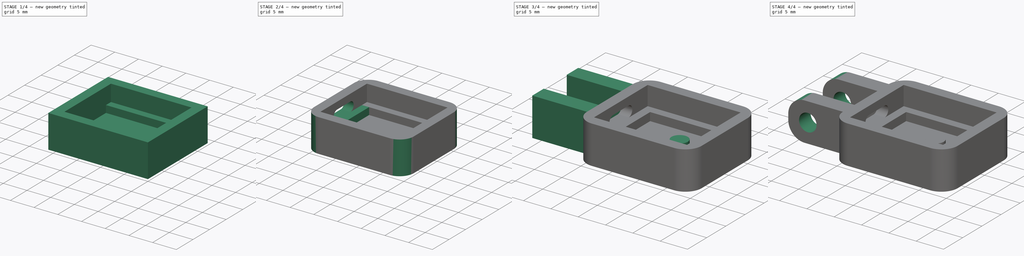
[diagram: build sequence overview — one tinted view per stage of 4, left to right]
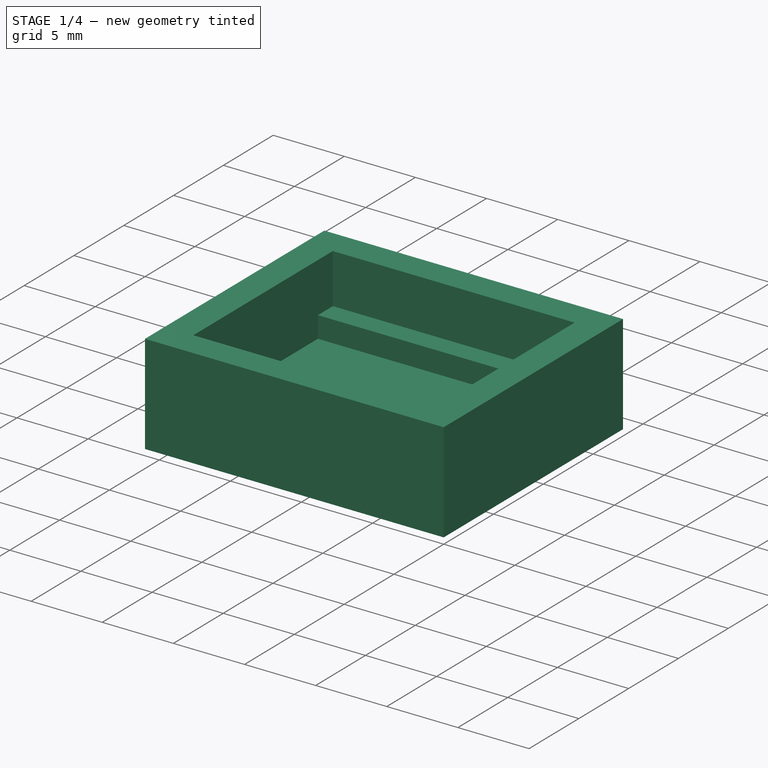
[diagram: stage 1 of 4 — iso view after this stage's code; geometry added in this stage tinted green]
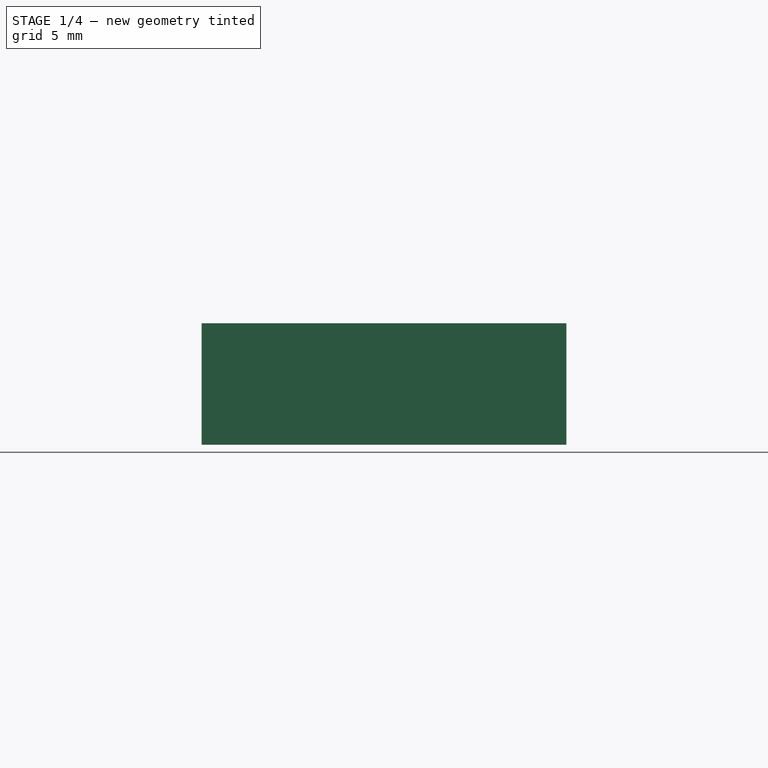
[diagram: stage 1 of 4 — front view after this stage's code; geometry added in this stage tinted green]
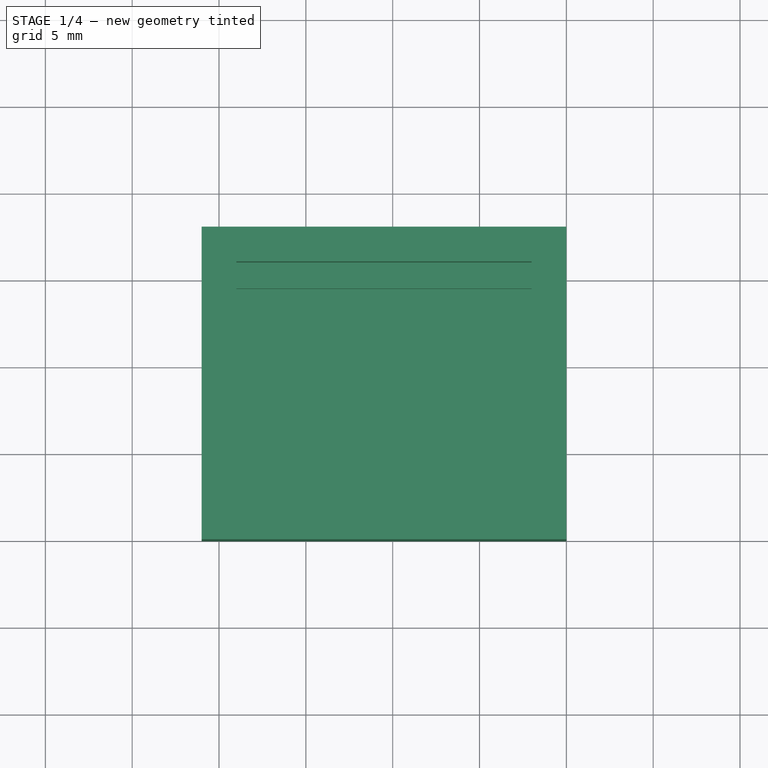
[diagram: stage 1 of 4 — top view after this stage's code; geometry added in this stage tinted green]
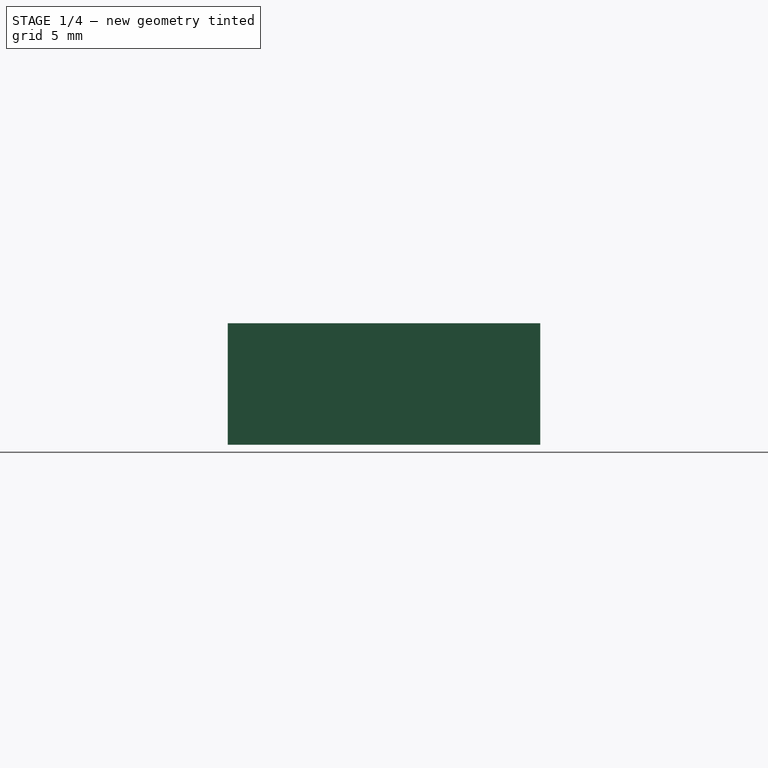
[diagram: stage 1 of 4 — right view after this stage's code; geometry added in this stage tinted green]
FCSTD DOCUMENT  (FreeCAD 0.19R24291 (Git))
Label: SensorBox
License: All rights reserved
LicenseURL: http://en.wikipedia.org/wiki/All_rights_reserved
objects: Sketcher::SketchObject×10, App::MeasureDistance×9, PartDesign::Pad×5, PartDesign::Pocket×4, PartDesign::Fillet×3, PartDesign::Body×1
note: 35 computed .brp shape members not serialized (recipe doc carries the construction recipe); baked Part::Feature solids carry a one-line shape summary decoded from their .brp

FEATURE [Sketcher::SketchObject] Sketch
  FullyConstrained = true
  MapMode = 5
  Support = -> [XY_Plane]
  sketch-geometry (4):
    g0: LineSegment StartX=0 StartY=0 StartZ=0 EndX=-21 EndY=0 EndZ=0
    g1: LineSegment StartX=-21 StartY=0 StartZ=0 EndX=-21 EndY=18 EndZ=0
    g2: LineSegment StartX=-21 StartY=18 StartZ=0 EndX=0 EndY=18 EndZ=0
    g3: LineSegment StartX=0 StartY=18 StartZ=0 EndX=0 EndY=0 EndZ=0
  constraints (11):
    c: Coincident(g0,g1)
    c: Coincident(g1,g2)
    c: Coincident(g2,g3)
    c: Coincident(g3,g0)
    c: Horizontal(g0)
    c: Horizontal(g2)
    c: Vertical(g1)
    c: Vertical(g3)
    c: Coincident(g0,g-1)
    c: DistanceX(g2,g2) = 21
    c: DistanceY(g1,g1) = 18
FEATURE [PartDesign::Pad] Pad
  Direction = (1,1,1)
  Length = 7
  Length2 = 100
  Profile = -> Sketch
  Type = 0
FEATURE [Sketcher::SketchObject] Sketch001
  ExternalGeometry = -> [Pad]
  FullyConstrained = true
  MapMode = 5
  Placement = pos=(0,0,7) rot=(0,0,1;0rad)
  Support = -> [Pad]
  sketch-geometry (4):
    g0: LineSegment StartX=-19 StartY=16 StartZ=0 EndX=-2 EndY=16 EndZ=0
    g1: LineSegment StartX=-2 StartY=16 StartZ=0 EndX=-2 EndY=2 EndZ=0
    g2: LineSegment StartX=-2 StartY=2 StartZ=0 EndX=-19 EndY=2 EndZ=0
    g3: LineSegment StartX=-19 StartY=2 StartZ=0 EndX=-19 EndY=16 EndZ=0
  constraints (12):
    c: Coincident(g0,g1)
    c: Coincident(g1,g2)
    c: Coincident(g2,g3)
    c: Coincident(g3,g0)
    c: Horizontal(g0)
    c: Horizontal(g2)
    c: Vertical(g1)
    c: Vertical(g3)
    c: Distance(g0,g-3) = 2
    c: Distance(g2,g-5) = 2
    c: Distance(g0,g-4) = 2
    c: DistanceX(g-2,g0) = -2
FEATURE [PartDesign::Pocket] Pocket
  BaseFeature = -> Pad
  Length = 5
  Length2 = 100
  Profile = -> Sketch001
  Type = 0
FEATURE [Sketcher::SketchObject] Sketch002
  FullyConstrained = true
  MapMode = 5
  Placement = pos=(0,0,2) rot=(0,0,1;0rad)
  Support = -> [Pocket]
FEATURE [App::MeasureDistance] Distance  label="Distance: 17,00 mm"
  Distance = 17
  P1 = (-19,16,7)
  P2 = (-2,16,7)
FEATURE [App::MeasureDistance] Distance001  label="Distance: 14,00 mm"
  Distance = 14
  P1 = (-19,2,7)
  P2 = (-19,16,7)
FEATURE [Sketcher::SketchObject] Sketch003
  ExternalGeometry = -> [Pocket]
  FullyConstrained = true
  MapMode = 5
  Placement = pos=(0,0,2) rot=(0,0,1;0rad)
  Support = -> [Pocket]
  sketch-geometry (8):
    g0: LineSegment StartX=-19 StartY=16 StartZ=0 EndX=-2 EndY=16 EndZ=0
    g1: LineSegment StartX=-2 StartY=16 StartZ=0 EndX=-2 EndY=14.5 EndZ=0
    g2: LineSegment StartX=-2 StartY=14.5 StartZ=0 EndX=-19 EndY=14.5 EndZ=0
    g3: LineSegment StartX=-19 StartY=14.5 StartZ=0 EndX=-19 EndY=16 EndZ=0
    g4: LineSegment StartX=-19 StartY=2 StartZ=0 EndX=-2 EndY=2 EndZ=0
    g5: LineSegment StartX=-2 StartY=2 StartZ=0 EndX=-2 EndY=3.5 EndZ=0
    g6: LineSegment StartX=-2 StartY=3.5 StartZ=0 EndX=-19 EndY=3.5 EndZ=0
    g7: LineSegment StartX=-19 StartY=3.5 StartZ=0 EndX=-19 EndY=2 EndZ=0
  constraints (22):
    c: Coincident(g0,g1)
    c: Coincident(g1,g2)
    c: Coincident(g2,g3)
    c: Coincident(g3,g0)
    c: Horizontal(g0)
    c: Horizontal(g2)
    c: Vertical(g1)
    c: Vertical(g3)
    c: Coincident(g0,g-5)
    c: PointOnObject(g1,g-4)
    c: Coincident(g4,g5)
    c: Coincident(g5,g6)
    c: Coincident(g6,g7)
    c: Coincident(g7,g4)
    c: Horizontal(g4)
    c: Horizontal(g6)
    c: Vertical(g5)
    c: Vertical(g7)
    c: Coincident(g4,g-5)
    c: PointOnObject(g5,g-4)
    c: DistanceY(g7,g7) = 1.5
    c: DistanceY(g3,g3) = 1.5
FEATURE [PartDesign::Pad] Pad001
  BaseFeature = -> Pocket
  Direction = (1,1,1)
  Length = 1.5
  Length2 = 100
  Profile = -> Sketch003
  Type = 0
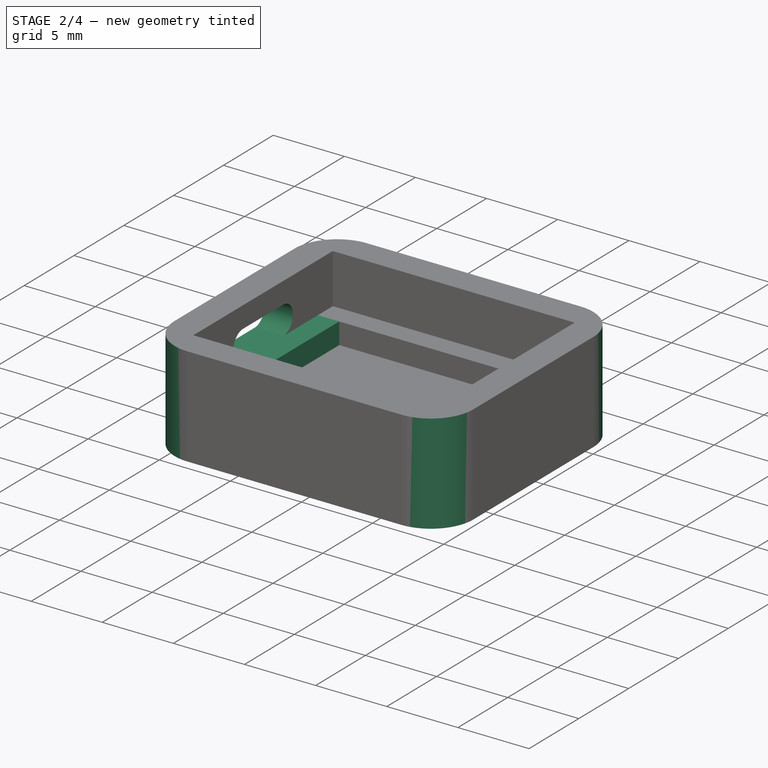
[diagram: stage 2 of 4 — iso view after this stage's code; geometry added in this stage tinted green]
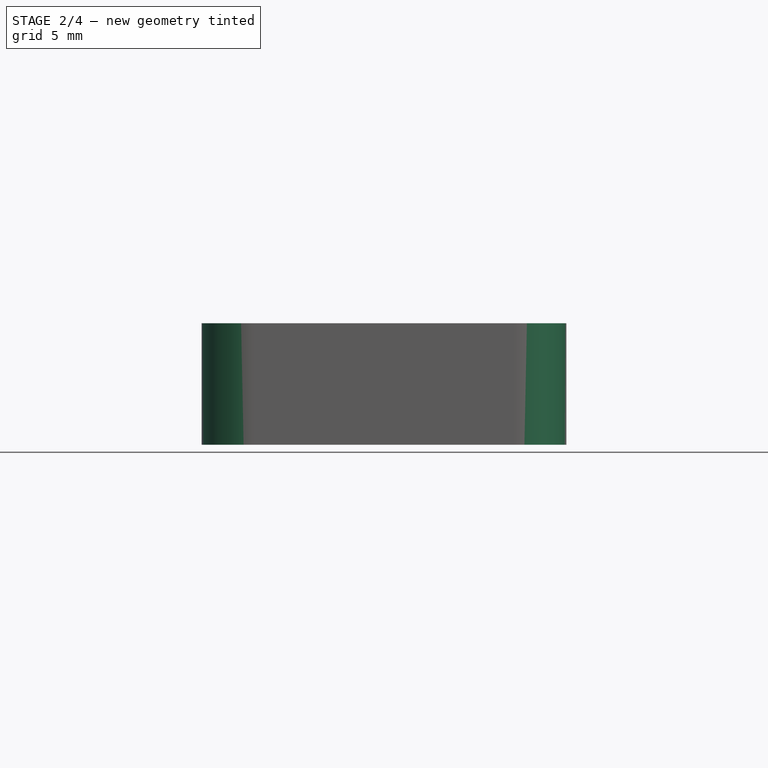
[diagram: stage 2 of 4 — front view after this stage's code; geometry added in this stage tinted green]
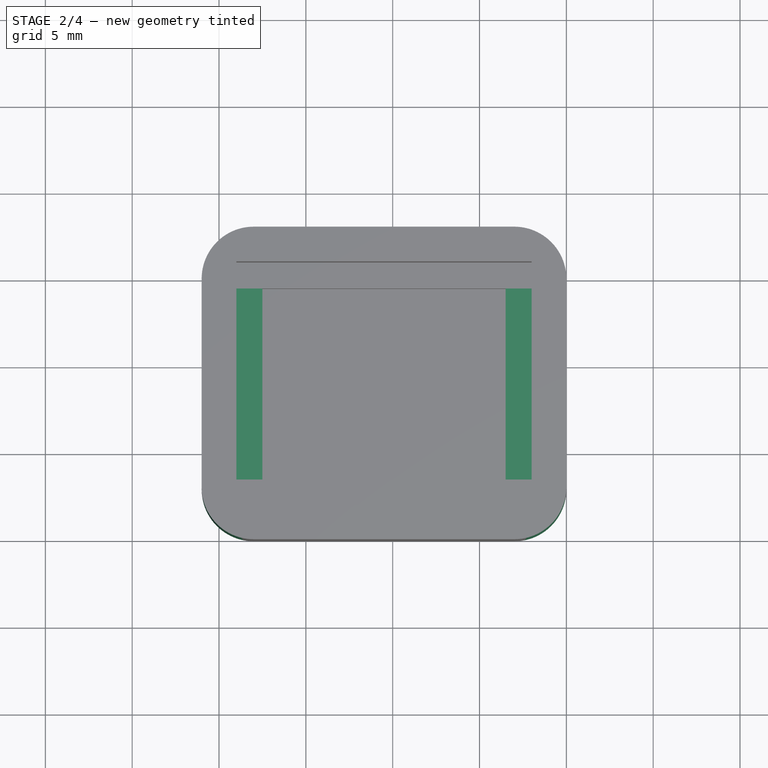
[diagram: stage 2 of 4 — top view after this stage's code; geometry added in this stage tinted green]
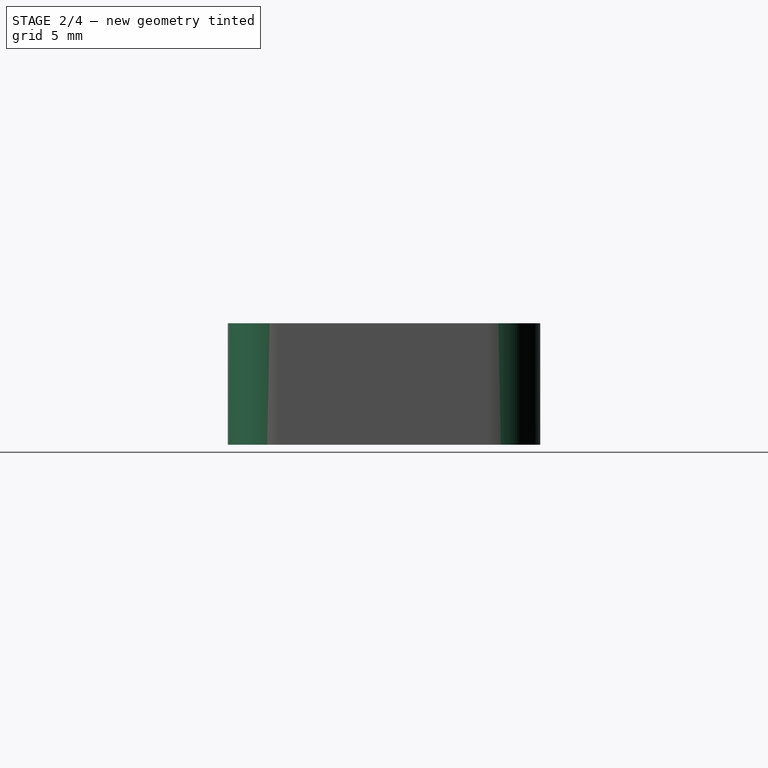
[diagram: stage 2 of 4 — right view after this stage's code; geometry added in this stage tinted green]
FEATURE [App::MeasureDistance] Distance002  label="Distance: 11,00 mm"
  Distance = 11
  P1 = (-19,14.5,17)
  P2 = (-19,3.5,17)
FEATURE [Sketcher::SketchObject] Sketch004
  ExternalGeometry = -> [Pad001]
  FullyConstrained = true
  MapMode = 5
  Placement = pos=(0,0,2) rot=(0,0,1;0rad)
  Support = -> [Pad001]
  sketch-geometry (8):
    g0: LineSegment StartX=-19 StartY=14.5 StartZ=0 EndX=-17.5 EndY=14.5 EndZ=0
    g1: LineSegment StartX=-17.5 StartY=14.5 StartZ=0 EndX=-17.5 EndY=3.5 EndZ=0
    g2: LineSegment StartX=-17.5 StartY=3.5 StartZ=0 EndX=-19 EndY=3.5 EndZ=0
    g3: LineSegment StartX=-19 StartY=3.5 StartZ=0 EndX=-19 EndY=14.5 EndZ=0
    g4: LineSegment StartX=-2 StartY=3.5 StartZ=0 EndX=-3.5 EndY=3.5 EndZ=0
    g5: LineSegment StartX=-3.5 StartY=3.5 StartZ=0 EndX=-3.5 EndY=14.5 EndZ=0
    g6: LineSegment StartX=-3.5 StartY=14.5 StartZ=0 EndX=-2 EndY=14.5 EndZ=0
    g7: LineSegment StartX=-2 StartY=14.5 StartZ=0 EndX=-2 EndY=3.5 EndZ=0
  constraints (22):
    c: Coincident(g0,g1)
    c: Coincident(g1,g2)
    c: Coincident(g2,g3)
    c: Coincident(g3,g0)
    c: Horizontal(g0)
    c: Horizontal(g2)
    c: Vertical(g1)
    c: Vertical(g3)
    c: Coincident(g0,g-6)
    c: PointOnObject(g1,g-3)
    c: Coincident(g4,g5)
    c: Coincident(g5,g6)
    c: Coincident(g6,g7)
    c: Coincident(g7,g4)
    c: Horizontal(g4)
    c: Horizontal(g6)
    c: Vertical(g5)
    c: Vertical(g7)
    c: Coincident(g4,g-3)
    c: PointOnObject(g5,g-6)
    c: DistanceX(g6,g6) = 1.5
    c: DistanceX(g0,g0) = 1.5
FEATURE [PartDesign::Pad] Pad002
  BaseFeature = -> Pad001
  Direction = (1,1,1)
  Length = 1.5
  Length2 = 100
  Profile = -> Sketch004
  Type = 0
FEATURE [Sketcher::SketchObject] Sketch005
  ExternalGeometry = -> [Pad002]
  FullyConstrained = true
  MapMode = 5
  Placement = pos=(-19,0,0) rot=(0.57735,0.57735,0.57735;2.0944rad)
  Support = -> [Pad002]
  sketch-geometry (8):
    g0: ArcOfCircle CenterX=7 CenterY=4.5 CenterZ=0 NormalX=0 NormalY=0 NormalZ=1 AngleXU=0 Radius=1 StartAngle=1.5708 EndAngle=4.71239
    g1: ArcOfCircle CenterX=11 CenterY=4.5 CenterZ=0 NormalX=0 NormalY=0 NormalZ=1 AngleXU=0 Radius=1 StartAngle=4.71239 EndAngle=7.85398
    g2: LineSegment StartX=7 StartY=3.5 StartZ=0 EndX=11 EndY=3.5 EndZ=0
    g3: LineSegment StartX=7 StartY=5.5 StartZ=0 EndX=11 EndY=5.5 EndZ=0
    g4: LineSegment StartX=2 StartY=7 StartZ=0 EndX=7 EndY=4.5 EndZ=0
    g5: LineSegment StartX=7 StartY=4.5 StartZ=0 EndX=3.5 EndY=3.5 EndZ=0
    g6: LineSegment StartX=14.5 StartY=3.5 StartZ=0 EndX=11 EndY=4.5 EndZ=0
    g7: LineSegment StartX=11 StartY=4.5 StartZ=0 EndX=16 EndY=7 EndZ=0
  constraints (18):
    c: Tangent(g0,g3) = 1.5708
    c: Tangent(g0,g2) = -1.5708
    c: Tangent(g2,g1) = -1.5708
    c: Tangent(g3,g1) = 1.5708
    c: Horizontal(g2)
    c: Equal(g0,g1)
    c: Coincident(g4,g-4)
    c: Coincident(g4,g0)
    c: Coincident(g5,g0)
    c: Coincident(g5,g-3)
    c: Coincident(g6,g-3)
    c: Coincident(g6,g1)
    c: Coincident(g7,g1)
    c: Coincident(g7,g-4)
    c: Equal(g7,g4)
    c: PointOnObject(g1,g-3)
    c: Distance(g1,g1) = 2
    c: Distance(g1,g0) = 4
FEATURE [PartDesign::Pocket] Pocket001
  BaseFeature = -> Pad002
  Length = 5
  Length2 = 100
  Profile = -> Sketch005
  Type = 0
FEATURE [Sketcher::SketchObject] Sketch006
  ExternalGeometry = -> [Pocket001]
  FullyConstrained = true
  MapMode = 5
  Placement = pos=(0,0,2) rot=(0,0,1;0rad)
  Support = -> [Pocket001]
  sketch-geometry (4):
    g0: LineSegment StartX=-7.5 StartY=13 StartZ=0 EndX=-4 EndY=13 EndZ=0
    g1: LineSegment StartX=-4 StartY=13 StartZ=0 EndX=-4 EndY=10.5 EndZ=0
    g2: LineSegment StartX=-4 StartY=10.5 StartZ=0 EndX=-7.5 EndY=10.5 EndZ=0
    g3: LineSegment StartX=-7.5 StartY=10.5 StartZ=0 EndX=-7.5 EndY=13 EndZ=0
  constraints (12):
    c: Coincident(g0,g1)
    c: Coincident(g1,g2)
    c: Coincident(g2,g3)
    c: Coincident(g3,g0)
    c: Horizontal(g0)
    c: Horizontal(g2)
    c: Vertical(g1)
    c: Vertical(g3)
    c: Distance(g1,g-4) = 0.5
    c: Distance(g0,g-3) = 1.5
    c: DistanceY(g3,g3) = 2.5
    c: DistanceX(g0,g0) = 3.5
FEATURE [App::MeasureDistance] Distance003  label="Distance: 21,00 mm"
  Distance = 21.0001
  P1 = (-21,17.9518,7)
  P2 = (0,18,7)
FEATURE [App::MeasureDistance] Distance004  label="Distance: 17,97 mm"
  Distance = 17.9669
  P1 = (0,17.9669,7)
  P2 = (0,0,7)
FEATURE [PartDesign::Fillet] Fillet
  Base = -> Pocket001 [Edge1,Edge2,Edge10,Edge5]
  BaseFeature = -> Pocket001
  Radius = 3
  SupportTransform = false
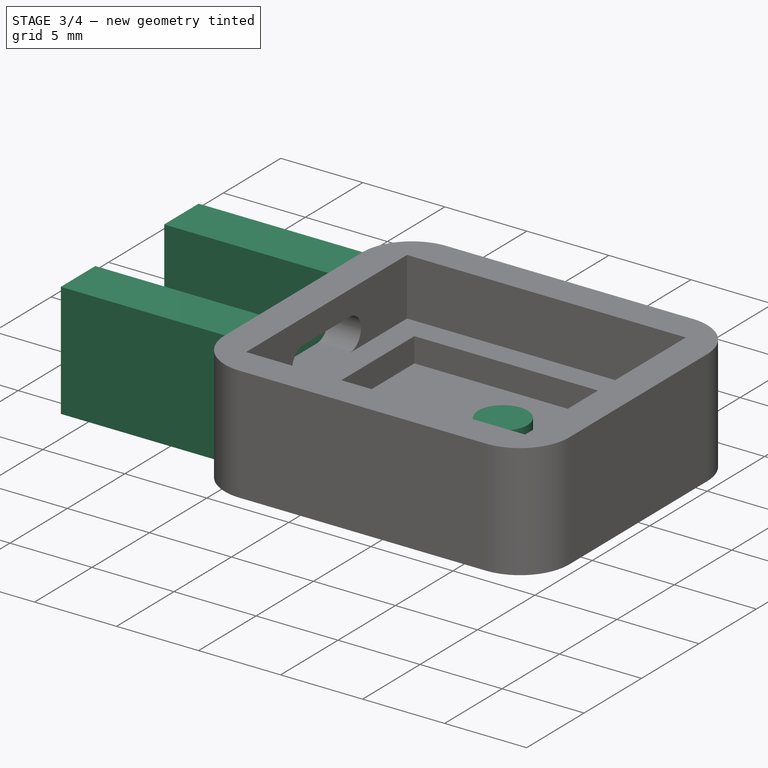
[diagram: stage 3 of 4 — iso view after this stage's code; geometry added in this stage tinted green]
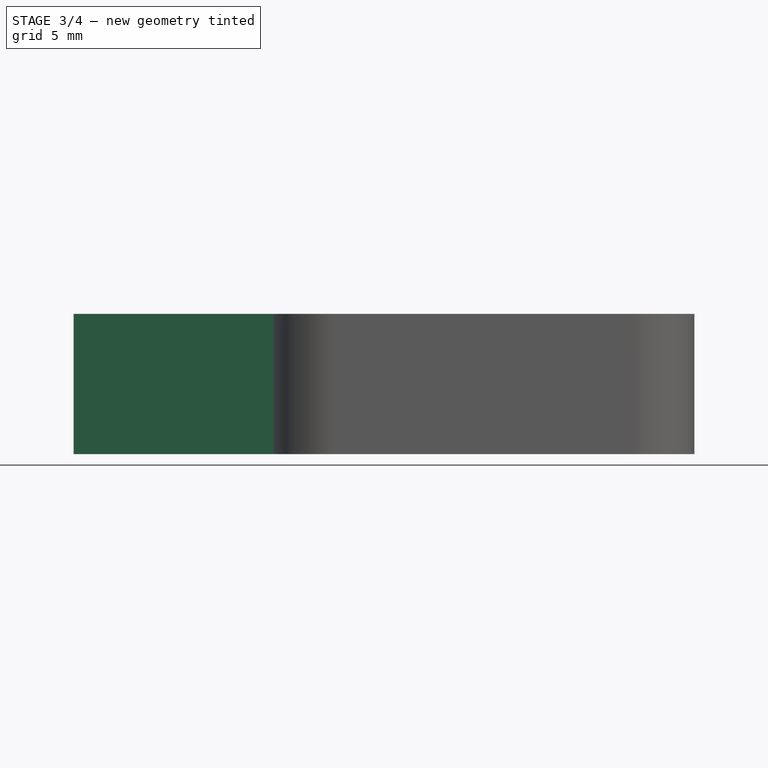
[diagram: stage 3 of 4 — front view after this stage's code; geometry added in this stage tinted green]
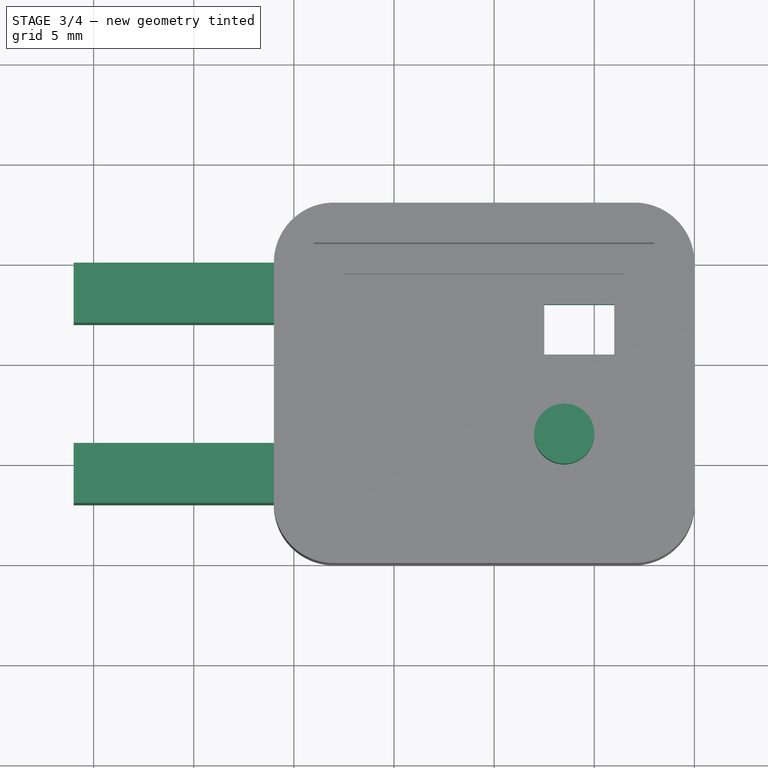
[diagram: stage 3 of 4 — top view after this stage's code; geometry added in this stage tinted green]
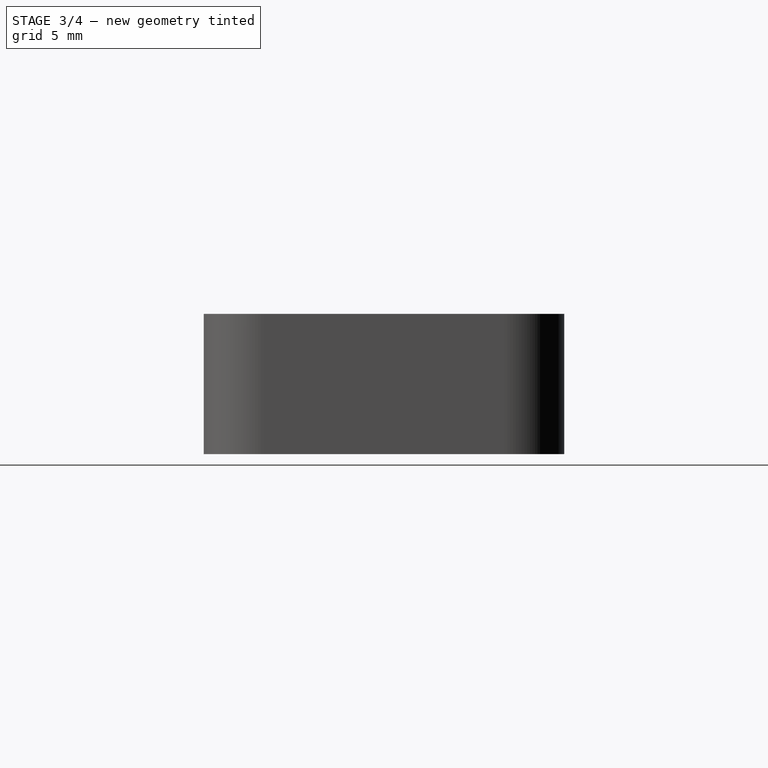
[diagram: stage 3 of 4 — right view after this stage's code; geometry added in this stage tinted green]
FEATURE [PartDesign::Pocket] Pocket002
  BaseFeature = -> Fillet
  Length = 5
  Length2 = 100
  Profile = -> Sketch006
  Type = 0
FEATURE [Sketcher::SketchObject] Sketch007
  ExternalGeometry = -> [Pocket002]
  FullyConstrained = true
  MapMode = 5
  Placement = pos=(0,0,2) rot=(0,0,1;0rad)
  Support = -> [Pocket002]
  sketch-geometry (1):
    g0: Circle CenterX=-6.5 CenterY=6.5 CenterZ=0 NormalX=0 NormalY=0 NormalZ=1 AngleXU=0 Radius=1.5
  constraints (3):
    c: Distance(g0,g-3) = 3
    c: Distance(g0,g-4) = 3
    c: Radius(g0) = 1.5
FEATURE [PartDesign::Pad] Pad003
  BaseFeature = -> Pocket002
  Direction = (1,1,1)
  Length = 3
  Length2 = 100
  Profile = -> Sketch007
  Type = 0
FEATURE [Sketcher::SketchObject] Sketch008
  ExternalGeometry = -> [Pad003]
  FullyConstrained = true
  MapMode = 5
  Placement = pos=(-21,0,0) rot=(0.57735,-0.57735,-0.57735;2.0944rad)
  Support = -> [Pad003]
  sketch-geometry (8):
    g0: LineSegment StartX=-15 StartY=7 StartZ=0 EndX=-12 EndY=7 EndZ=0
    g1: LineSegment StartX=-12 StartY=7 StartZ=0 EndX=-12 EndY=0 EndZ=0
    g2: LineSegment StartX=-12 StartY=0 StartZ=0 EndX=-15 EndY=0 EndZ=0
    g3: LineSegment StartX=-15 StartY=0 StartZ=0 EndX=-15 EndY=7 EndZ=0
    g4: LineSegment StartX=-6 StartY=0 StartZ=0 EndX=-3 EndY=0 EndZ=0
    g5: LineSegment StartX=-3 StartY=0 StartZ=0 EndX=-3 EndY=7 EndZ=0
    g6: LineSegment StartX=-3 StartY=7 StartZ=0 EndX=-6 EndY=7 EndZ=0
    g7: LineSegment StartX=-6 StartY=7 StartZ=0 EndX=-6 EndY=0 EndZ=0
  constraints (24):
    c: Coincident(g0,g1)
    c: Coincident(g1,g2)
    c: Coincident(g2,g3)
    c: Coincident(g3,g0)
    c: Horizontal(g0)
    c: Horizontal(g2)
    c: Vertical(g1)
    c: Vertical(g3)
    c: PointOnObject(g0,g-3)
    c: PointOnObject(g1,g-4)
    c: Coincident(g4,g5)
    c: Coincident(g5,g6)
    c: Coincident(g6,g7)
    c: Coincident(g7,g4)
    c: Horizontal(g4)
    c: Horizontal(g6)
    c: Vertical(g5)
    c: Vertical(g7)
    c: PointOnObject(g4,g-4)
    c: PointOnObject(g5,g-3)
    c: Tangent(g-5,g7)
    c: Tangent(g1,g-6)
    c: DistanceX(g0,g0) = 3
    c: DistanceX(g6,g6) = 3
FEATURE [PartDesign::Pad] Pad004
  BaseFeature = -> Pad003
  Direction = (1,1,1)
  Length = 10
  Length2 = 100
  Profile = -> Sketch008
  Type = 0
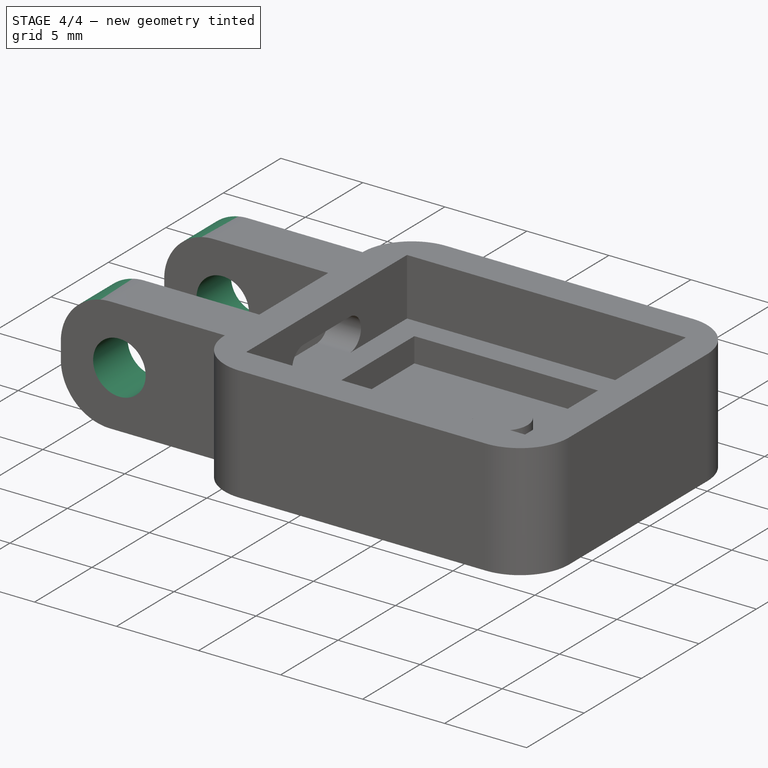
[diagram: stage 4 of 4 — iso view after this stage's code; geometry added in this stage tinted green]
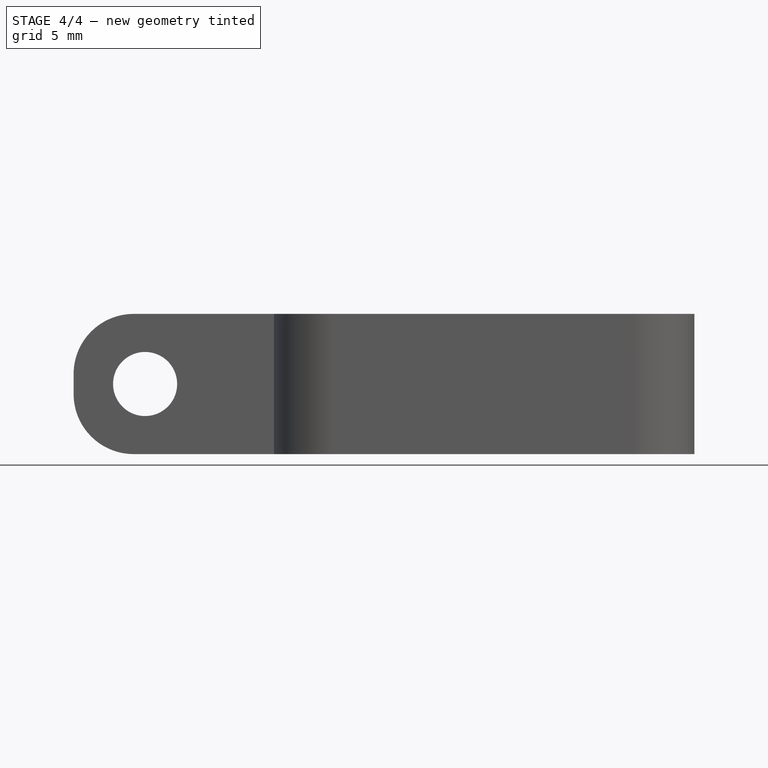
[diagram: stage 4 of 4 — front view after this stage's code; geometry added in this stage tinted green]
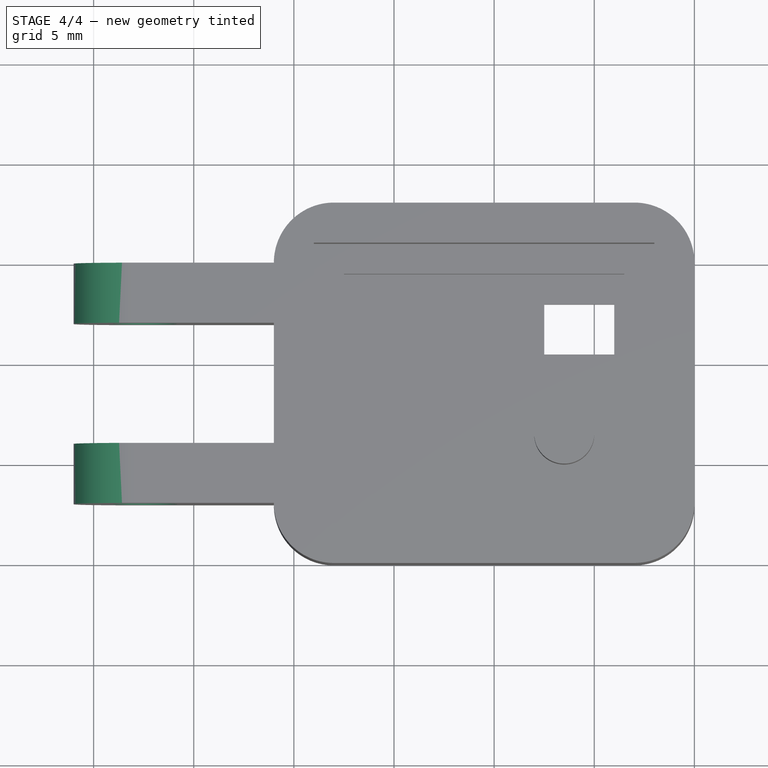
[diagram: stage 4 of 4 — top view after this stage's code; geometry added in this stage tinted green]
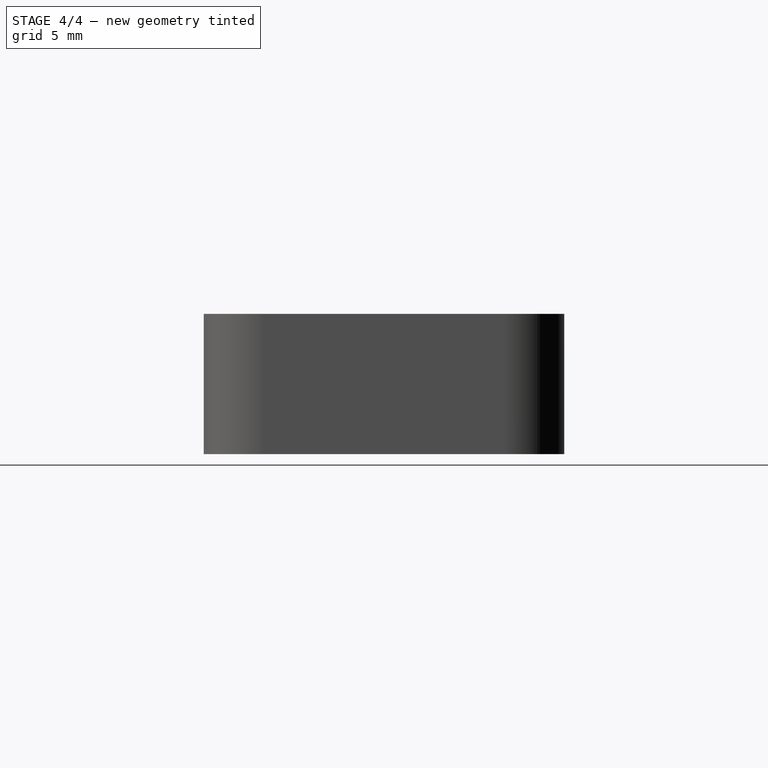
[diagram: stage 4 of 4 — right view after this stage's code; geometry added in this stage tinted green]
FEATURE [Sketcher::SketchObject] Sketch009
  ExternalGeometry = -> [Pad004]
  FullyConstrained = true
  MapMode = 5
  Placement = pos=(0,3,0) rot=(1,0,0;1.5708rad)
  Support = -> [Pad004]
  sketch-geometry (3):
    g0: Circle CenterX=-27.4293 CenterY=3.5 CenterZ=0 NormalX=0 NormalY=0 NormalZ=1 AngleXU=0 Radius=1.6
    g1: LineSegment StartX=-31 StartY=7 StartZ=0 EndX=-27.4293 EndY=3.5 EndZ=0
    g2: LineSegment StartX=-27.4293 StartY=3.5 StartZ=0 EndX=-31 EndY=0 EndZ=0
  constraints (7):
    c: Coincident(g1,g-3)
    c: Coincident(g1,g0)
    c: Coincident(g2,g0)
    c: Coincident(g2,g-3)
    c: Equal(g1,g2)
    c: Radius(g0) = 1.6
    c: Distance(g1) = 5
FEATURE [PartDesign::Pocket] Pocket003
  BaseFeature = -> Pad004
  Length = 5
  Length2 = 100
  Profile = -> Sketch009
  Type = 1
FEATURE [PartDesign::Fillet] Fillet001
  Base = -> Pocket003 [Edge60,Edge36,Edge44,Edge68]
  BaseFeature = -> Pocket003
  Radius = 3
  SupportTransform = false
FEATURE [App::MeasureDistance] Distance005  label="Distance: 6,05 mm"
  Distance = 6.0495
  P1 = (-21.0696,12,7)
  P2 = (-21,5.9509,7)
FEATURE [App::MeasureDistance] Distance006  label="Distance: 6,98 mm"
  Distance = 6.98123
  P1 = (-20.9994,2.99395,7)
  P2 = (-20.9959,2.95878,0.0188615)
FEATURE [PartDesign::Fillet] Fillet002
  Base = -> Fillet001 [Edge26,Edge25,Edge24,Edge23]
  BaseFeature = -> Fillet001
  Radius = 1
  SupportTransform = false
FEATURE [PartDesign::Body] Body
  Group = -> [Sketch,Pad,Sketch001,Pocket,Sketch002,Sketch003,Pad001,Sketch004,Pad002,Sketch005,Pocket001,Sketch006,Fillet,Pocket002,Sketch007,Pad003,Sketch008,Pad004,Sketch009,Pocket003,Fillet001,Fillet002]
  Origin = -> Origin
  Tip = -> Fillet002
FEATURE [App::MeasureDistance] Distance007  label="Distance: 6,00 mm"
  Distance = 6.00002
  P1 = (-27.9828,12,0)
  P2 = (-27.9657,6,0)
FEATURE [App::MeasureDistance] Distance008  label="Distance: 2,93 mm"
  Distance = 2.93213
  P1 = (-28,14.9316,0)
  P2 = (-27.9429,12,0)
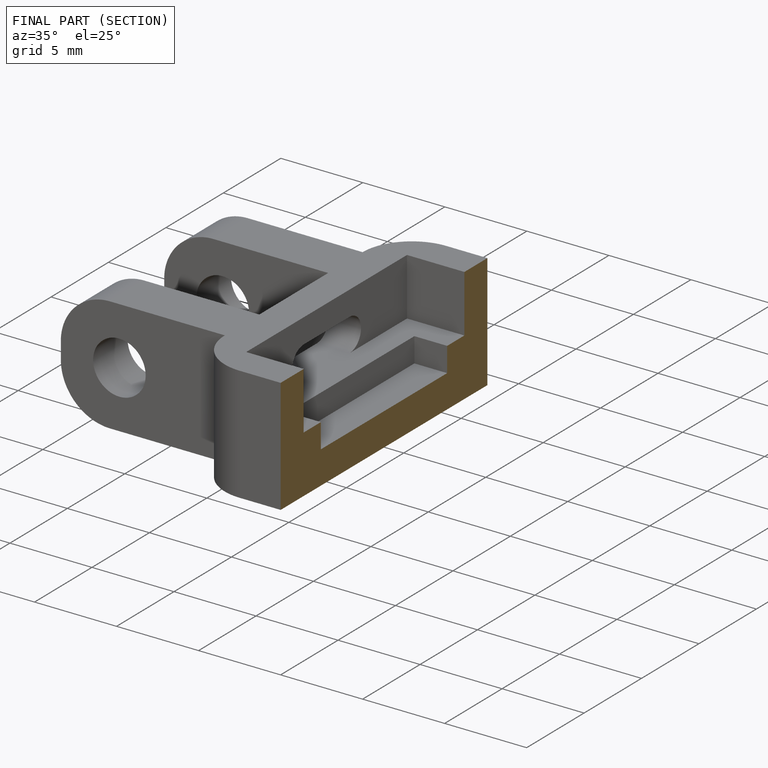
[diagram: finished part — half-section view (interior)]
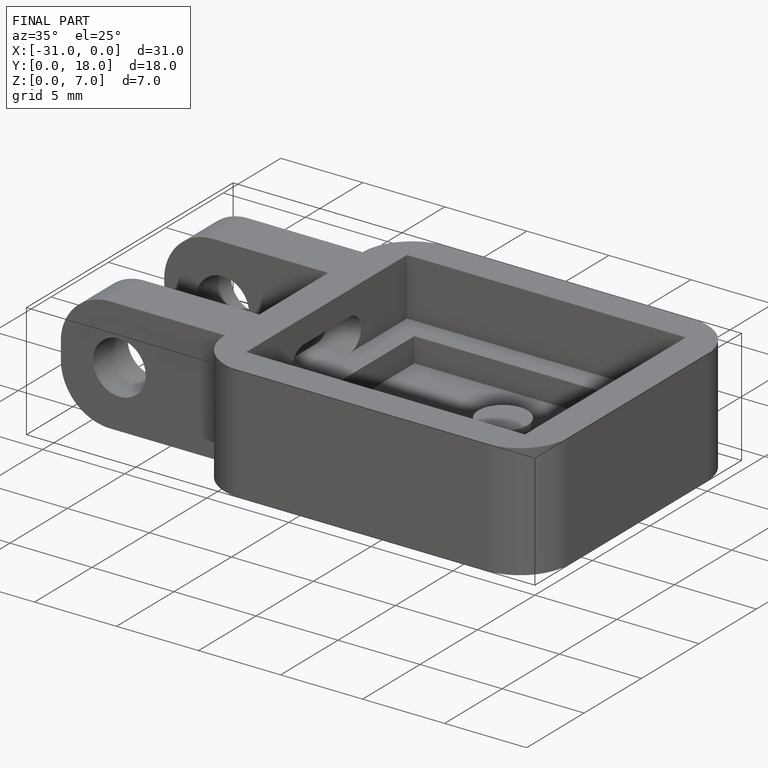
[diagram: finished part — iso view with bounding-box wireframe]
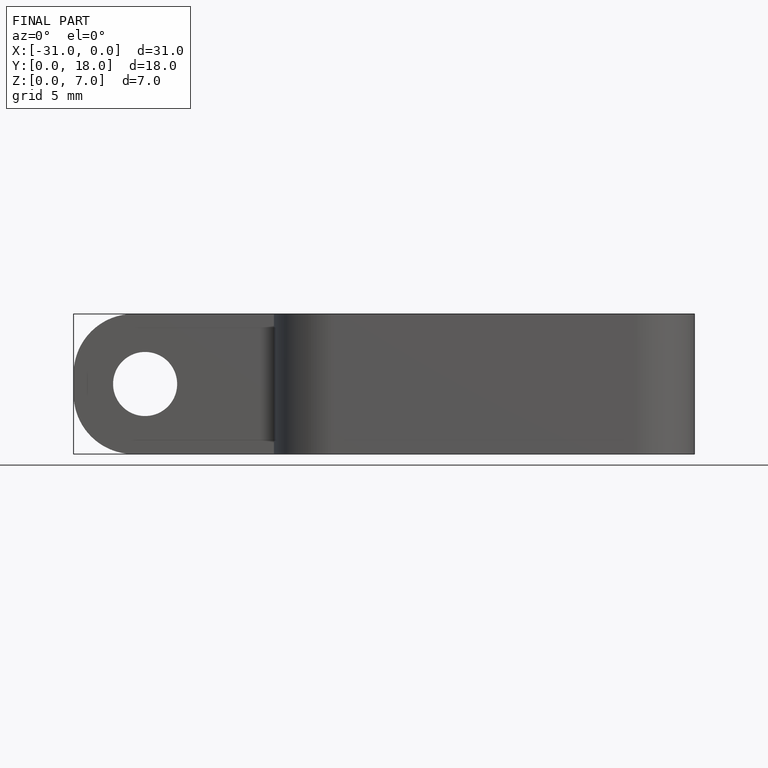
[diagram: finished part — front view with bounding-box wireframe]
